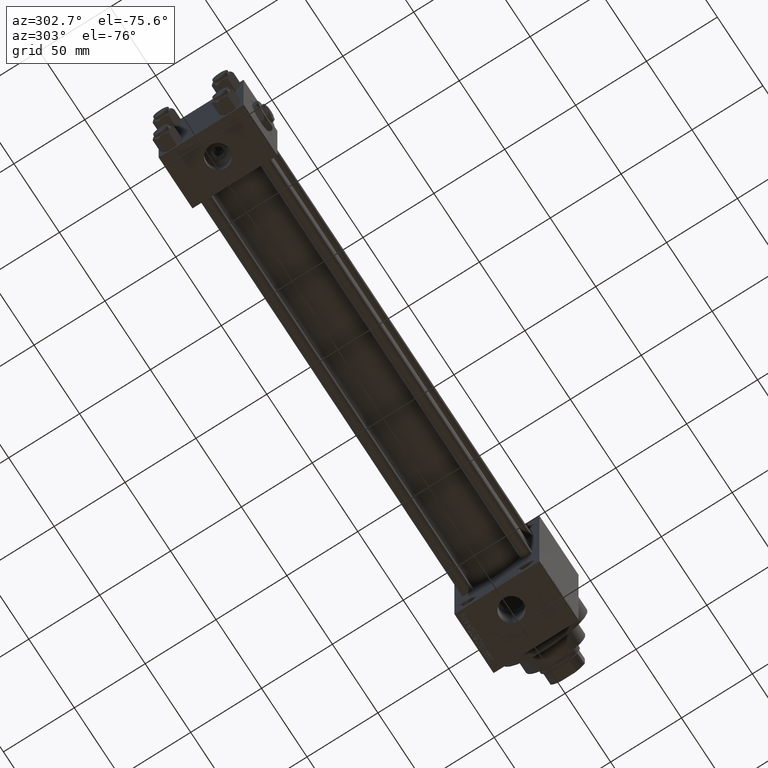
[diagram: clean part render]
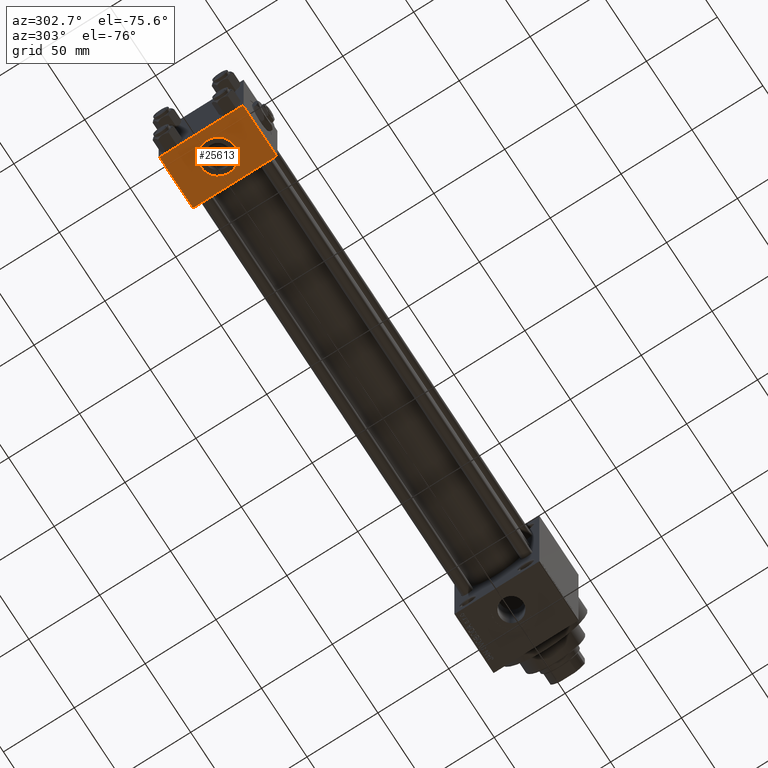
[diagram: same view with one face highlighted and labeled with its STEP entity id]
A machine part, auxiliary view. The second image highlights one B-rep face of the part: STEP entity #25613.
In plain terms, the highlighted planar face has unit normal (0, 0, -1).
Its self-contained STEP definition (entity closure, byte-faithful):
#182 = DIRECTION ( 'NONE',  ( 0.000000000000000000, -1.734723475976806848E-16, -1.000000000000000000 ) ) ;
#683 = DIRECTION ( 'NONE',  ( 0.000000000000000000, 1.000000000000000000, -2.891205793294677833E-16 ) ) ;
#868 = ORIENTED_EDGE ( 'NONE', *, *, #27602, .F. ) ;
#3418 = LINE ( 'NONE', #19321, #44735 ) ;
#3456 = VECTOR ( 'NONE', #38185, 1000.000000000000000 ) ;
#4205 = EDGE_LOOP ( 'NONE', ( #5999, #20545 ) ) ;
#4328 = PLANE ( 'NONE',  #46238 ) ;
#4821 = FACE_OUTER_BOUND ( 'NONE', #29969, .T. ) ;
#5270 = DIRECTION ( 'NONE',  ( 0.000000000000000000, -1.000000000000000000, -1.156482317317871725E-16 ) ) ;
#5999 = ORIENTED_EDGE ( 'NONE', *, *, #37393, .F. ) ;
#6599 = ORIENTED_EDGE ( 'NONE', *, *, #35422, .T. ) ;
#8015 = DIRECTION ( 'NONE',  ( 0.000000000000000000, 1.000000000000000000, -2.891205793294677833E-16 ) ) ;
#8298 = DIRECTION ( 'NONE',  ( 0.000000000000000000, 1.156482317317871725E-16, -1.000000000000000000 ) ) ;
#8535 = CARTESIAN_POINT ( 'NONE',  ( 37.00000000000000000, 29.49999999999997868, -30.00000000000000000 ) ) ;
#10250 = VECTOR ( 'NONE', #43429, 1000.000000000000000 ) ;
#11786 = EDGE_CURVE ( 'NONE', #40584, #45414, #25466, .T. ) ;
#11955 = AXIS2_PLACEMENT_3D ( 'NONE', #26937, #45634, #8015 ) ;
#12734 = LINE ( 'NONE', #34909, #32904 ) ;
#14717 = CARTESIAN_POINT ( 'NONE',  ( 37.00000000000000000, 29.49999999999997868, -30.00000000000000000 ) ) ;
#15345 = EDGE_CURVE ( 'NONE', #32316, #43759, #33441, .T. ) ;
#16320 = AXIS2_PLACEMENT_3D ( 'NONE', #45026, #182, #683 ) ;
#19321 = CARTESIAN_POINT ( 'NONE',  ( 0.000000000000000000, 29.99999999999999289, -30.00000000000000000 ) ) ;
#20545 = ORIENTED_EDGE ( 'NONE', *, *, #15345, .F. ) ;
#22532 = CARTESIAN_POINT ( 'NONE',  ( 18.50000000000000355, 12.00000000000000355, -30.00000000000000711 ) ) ;
#22613 = CARTESIAN_POINT ( 'NONE',  ( 0.000000000000000000, -29.50000000000000000, -30.00000000000000711 ) ) ;
#22993 = CARTESIAN_POINT ( 'NONE',  ( 37.00000000000000000, 29.99999999999999289, -30.00000000000000000 ) ) ;
#24914 = VERTEX_POINT ( 'NONE', #14717 ) ;
#25466 = LINE ( 'NONE', #36438, #10250 ) ;
#25613 = ADVANCED_FACE ( 'NONE', ( #45921, #4821 ), #4328, .T. ) ;
#26937 = CARTESIAN_POINT ( 'NONE',  ( 18.50000000000000355, 2.265018109976774967E-15, -30.00000000000000355 ) ) ;
#27457 = LINE ( 'NONE', #8535, #3456 ) ;
#27602 = EDGE_CURVE ( 'NONE', #34766, #45414, #3418, .T. ) ;
#29558 = EDGE_CURVE ( 'NONE', #34766, #24914, #27457, .T. ) ;
#29969 = EDGE_LOOP ( 'NONE', ( #868, #46072, #6599, #43705 ) ) ;
#32316 = VERTEX_POINT ( 'NONE', #43782 ) ;
#32557 = CARTESIAN_POINT ( 'NONE',  ( 0.000000000000000000, 29.49999999999997868, -30.00000000000000000 ) ) ;
#32904 = VECTOR ( 'NONE', #5270, 1000.000000000000000 ) ;
#33441 = CIRCLE ( 'NONE', #11955, 12.00000000000000178 ) ;
#34766 = VERTEX_POINT ( 'NONE', #32557 ) ;
#34909 = CARTESIAN_POINT ( 'NONE',  ( 37.00000000000000000, 29.99999999999999289, -30.00000000000000000 ) ) ;
#35422 = EDGE_CURVE ( 'NONE', #24914, #40584, #12734, .T. ) ;
#36438 = CARTESIAN_POINT ( 'NONE',  ( 0.000000000000000000, -29.50000000000001066, -30.00000000000000711 ) ) ;
#37393 = EDGE_CURVE ( 'NONE', #43759, #32316, #38571, .T. ) ;
#38185 = DIRECTION ( 'NONE',  ( 1.000000000000000000, 0.000000000000000000, 0.000000000000000000 ) ) ;
#38200 = DIRECTION ( 'NONE',  ( 0.000000000000000000, 1.000000000000000000, 1.156482317317871725E-16 ) ) ;
#38369 = CARTESIAN_POINT ( 'NONE',  ( 37.00000000000000000, -29.50000000000000000, -30.00000000000000711 ) ) ;
#38571 = CIRCLE ( 'NONE', #16320, 12.00000000000000178 ) ;
#40584 = VERTEX_POINT ( 'NONE', #38369 ) ;
#43429 = DIRECTION ( 'NONE',  ( -1.000000000000000000, 0.000000000000000000, 0.000000000000000000 ) ) ;
#43705 = ORIENTED_EDGE ( 'NONE', *, *, #11786, .T. ) ;
#43759 = VERTEX_POINT ( 'NONE', #22532 ) ;
#43782 = CARTESIAN_POINT ( 'NONE',  ( 18.50000000000000355, -12.00000000000000000, -30.00000000000000000 ) ) ;
#44735 = VECTOR ( 'NONE', #48995, 1000.000000000000000 ) ;
#45026 = CARTESIAN_POINT ( 'NONE',  ( 18.50000000000000355, 2.265018109976774967E-15, -30.00000000000000355 ) ) ;
#45414 = VERTEX_POINT ( 'NONE', #22613 ) ;
#45634 = DIRECTION ( 'NONE',  ( 0.000000000000000000, -1.734723475976806848E-16, -1.000000000000000000 ) ) ;
#45921 = FACE_BOUND ( 'NONE', #4205, .T. ) ;
#46072 = ORIENTED_EDGE ( 'NONE', *, *, #29558, .T. ) ;
#46238 = AXIS2_PLACEMENT_3D ( 'NONE', #22993, #8298, #38200 ) ;
#48995 = DIRECTION ( 'NONE',  ( 0.000000000000000000, -1.000000000000000000, -1.156482317317871725E-16 ) ) ;